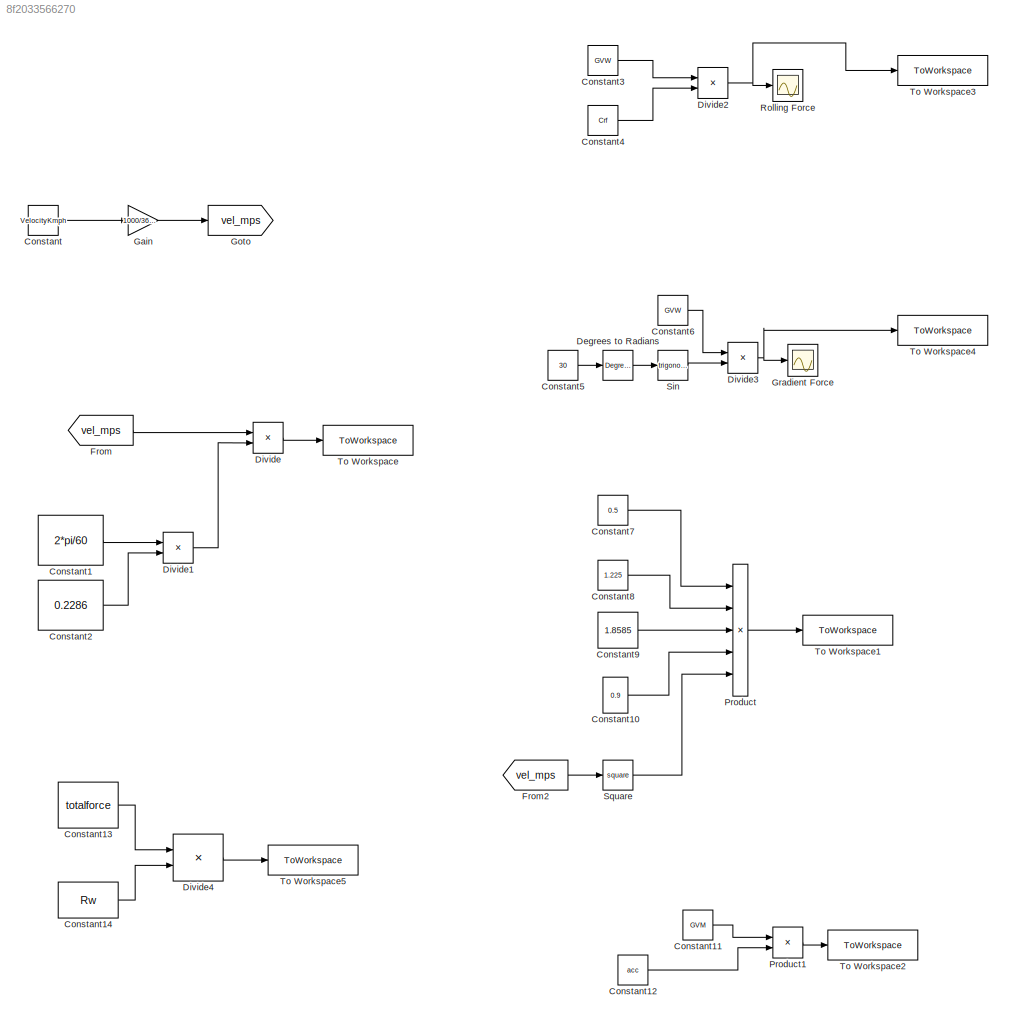
MODEL slx_8f2033566270
KIND model
CONFIG AbsTol = auto
CONFIG EnableMultiTasking = off
CONFIG FixedStep = auto
CONFIG MaxStep = auto
CONFIG MinStep = auto
CONFIG RelTol = 1e-3
CONFIG SampleTimeConstraint = Unconstrained
CONFIG Solver = VariableStepAuto
CONFIG SolverName = VariableStepAuto
CONFIG StartTime = 0.0
CONFIG StopTime = 0.5
BLOCK [Constant] Constant
  Value = VelocityKmph
BLOCK [Constant] Constant1
  Value = 2*pi/60
BLOCK [Constant] Constant10
  Value = 0.9
BLOCK [Constant] Constant11
  Value = GVM
BLOCK [Constant] Constant12
  Value = acc
BLOCK [Constant] Constant13
  Value = totalforce
BLOCK [Constant] Constant14
  Value = Rw
BLOCK [Constant] Constant2
  Value = 0.2286
BLOCK [Constant] Constant3
  SampleTime = -1
  Value = GVW
BLOCK [Constant] Constant4
  SampleTime = -1
  Value = Crf
BLOCK [Constant] Constant5
  SampleTime = -1
  Value = 30
BLOCK [Constant] Constant6
  SampleTime = -1
  Value = GVW
BLOCK [Constant] Constant7
  Value = 0.5
BLOCK [Constant] Constant8
  Value = 1.225
BLOCK [Constant] Constant9
  Value = 1.8585
BLOCK [Reference] Degrees to Radians  REF=simulink_extras/Transformations/Degrees to
Radians
  Ports = [1, 1]
  SourceBlock = simulink_extras/Transformations/Degrees to\nRadians
  SourceProductBaseCode = SL
  SourceType = DegreesToRadians
BLOCK [Product] Divide
  Inputs = */
  Ports = [2, 1]
BLOCK [Product] Divide1
  Inputs = **
  Ports = [2, 1]
BLOCK [Product] Divide2
  Inputs = **
  Ports = [2, 1]
BLOCK [Product] Divide3
  Inputs = **
  Ports = [2, 1]
BLOCK [Product] Divide4
  Inputs = **
  Ports = [2, 1]
BLOCK [From] From
  GotoTag = vel_mps
BLOCK [From] From2
  GotoTag = vel_mps
BLOCK [Gain] Gain
  Gain = 1000/3600
BLOCK [Goto] Goto
  GotoTag = vel_mps
BLOCK [Scope] Gradient Force
  Floating = off
  NumInputPorts = 1
  Ports = [1]
  ScopeSpecificationString = Simulink.scopes.TimeScopeBlockCfg('CurrentConfiguration', extmgr.ConfigurationSet(extmgr.Configuration('Core','General UI',true),extmgr.Configuration('Core','Source UI',true),extmgr.Configuration('Sources','WiredSimulink',true,'DataLoggingVariableName','ScopeData1'),extmgr.Configuration('Visuals','Time Domain',true,'SerializedDisplays',{struct('MinYLimReal','3414.5','MaxYLimReal','5414.5','YLabelR...<+1475ch>
BLOCK [Product] Product
  Inputs = 5
  Ports = [5, 1]
BLOCK [Product] Product1
  Ports = [2, 1]
BLOCK [Scope] Rolling Force
  Floating = off
  NumInputPorts = 1
  Ports = [1]
  ScopeSpecificationString = Simulink.scopes.TimeScopeBlockCfg('CurrentConfiguration', extmgr.ConfigurationSet(extmgr.Configuration('Core','General UI',true),extmgr.Configuration('Core','Source UI',true),extmgr.Configuration('Sources','WiredSimulink',true),extmgr.Configuration('Visuals','Time Domain',true,'SerializedDisplays',{struct('MinYLimReal','32.435','MaxYLimReal','232.435','YLabelReal','','MinYLimMag','32.435','MaxYLim...<+1356ch>
BLOCK [Trigonometry] Sin
  Ports = [1, 1]
BLOCK [Math] Square
  Operator = square
  Ports = [1, 1]
BLOCK [ToWorkspace] To Workspace
  FixptAsFi = on
  MaxDataPoints = inf
  Ports = [1]
  SampleTime = -1
  VariableName = wheel_speed
BLOCK [ToWorkspace] To Workspace1
  FixptAsFi = on
  MaxDataPoints = inf
  Ports = [1]
  SampleTime = -1
  VariableName = aeroforce
BLOCK [ToWorkspace] To Workspace2
  FixptAsFi = on
  MaxDataPoints = inf
  Ports = [1]
  SampleTime = -1
  VariableName = accforce
BLOCK [ToWorkspace] To Workspace3
  FixptAsFi = on
  MaxDataPoints = inf
  Ports = [1]
  SampleTime = -1
  VariableName = rollingforce
BLOCK [ToWorkspace] To Workspace4
  FixptAsFi = on
  MaxDataPoints = inf
  Ports = [1]
  SampleTime = -1
  VariableName = gradientforce
BLOCK [ToWorkspace] To Workspace5
  FixptAsFi = on
  MaxDataPoints = inf
  Ports = [1]
  SampleTime = -1
  VariableName = torque
LINE Constant10:1 -> Product:4
LINE Constant11:1 -> Product1:1
LINE Constant12:1 -> Product1:2
LINE Constant13:1 -> Divide4:1
LINE Constant14:1 -> Divide4:2
LINE Constant1:1 -> Divide1:1
LINE Constant2:1 -> Divide1:2
LINE Constant3:1 -> Divide2:1
LINE Constant4:1 -> Divide2:2
LINE Constant5:1 -> Degrees to Radians:1
LINE Constant6:1 -> Divide3:1
LINE Constant7:1 -> Product:1
LINE Constant8:1 -> Product:2
LINE Constant9:1 -> Product:3
LINE Constant:1 -> Gain:1
LINE Degrees to Radians:1 -> Sin:1
LINE Divide1:1 -> Divide:2
NET Divide2:1 -> Rolling Force:1, To Workspace3:1
NET Divide3:1 -> Gradient Force:1, To Workspace4:1
LINE Divide4:1 -> To Workspace5:1
LINE Divide:1 -> To Workspace:1
LINE From2:1 -> Square:1
LINE From:1 -> Divide:1
LINE Gain:1 -> Goto:1
LINE Product1:1 -> To Workspace2:1
LINE Product:1 -> To Workspace1:1
LINE Sin:1 -> Divide3:2
LINE Square:1 -> Product:5
note: NET lines group one-source signal fan-out (src -> all destinations, sorted); 1:1 wires keep LINE
